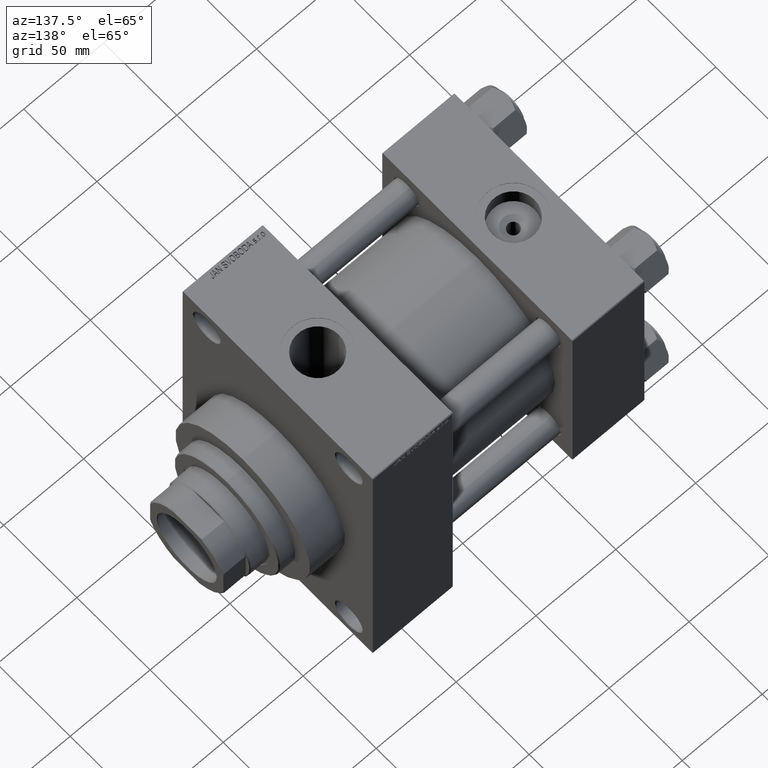
[diagram: clean part render]
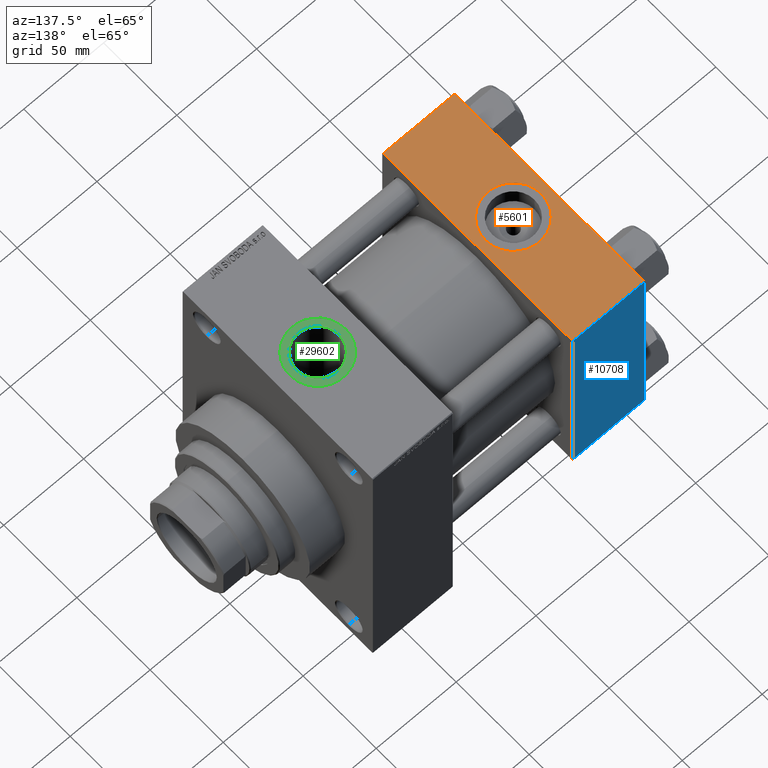
[diagram: same view with three faces highlighted in distinct colors, each labeled with its STEP entity id]
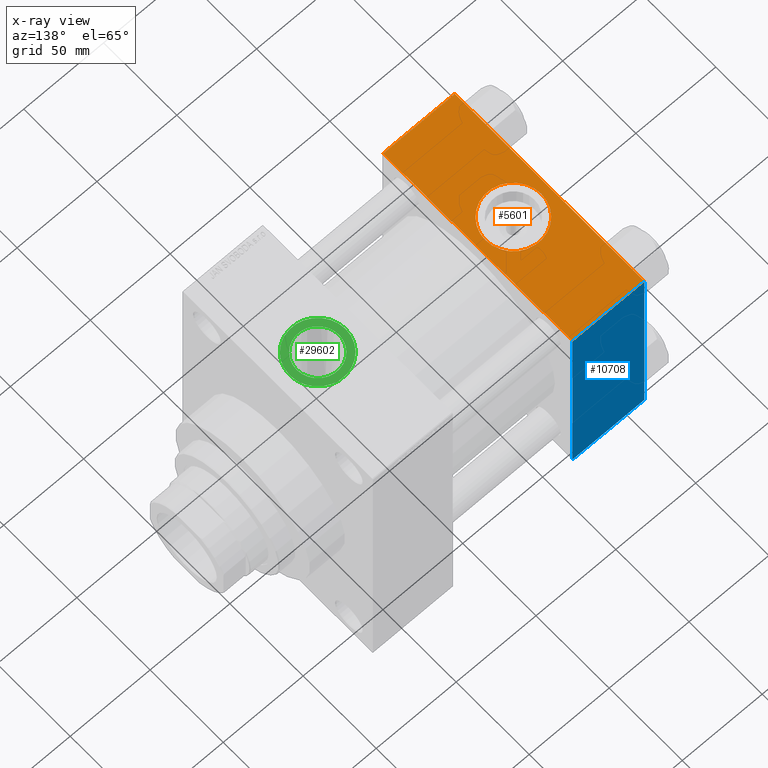
[diagram: x-ray of the same camera — body ghosted, the three highlighted faces saturated]
A machine part, auxiliary view with three faces highlighted in distinct colors.
The next image is the same camera in x-ray (body ghosted, the three faces saturated) — at least one of them is partly hidden behind the body in this view.
Their STEP definitions:

[orange] entity #5601 — the highlighted planar face has unit normal (0, 0, -1).
#401 = EDGE_CURVE ( 'NONE', #7485, #40539, #41280, .T. ) ;
#544 = LINE ( 'NONE', #14367, #30205 ) ;
#2630 = DIRECTION ( 'NONE',  ( 0.000000000000000000, 0.000000000000000000, 1.000000000000000000 ) ) ;
#2681 = ORIENTED_EDGE ( 'NONE', *, *, #42857, .T. ) ;
#3645 = ORIENTED_EDGE ( 'NONE', *, *, #401, .F. ) ;
#4182 = DIRECTION ( 'NONE',  ( -1.000000000000000000, 0.000000000000000000, 0.000000000000000000 ) ) ;
#4373 = DIRECTION ( 'NONE',  ( 0.000000000000000000, -1.000000000000000000, -1.067522139062650425E-16 ) ) ;
#4875 = ORIENTED_EDGE ( 'NONE', *, *, #27930, .T. ) ;
#5601 = ADVANCED_FACE ( 'NONE', ( #45344, #12793 ), #12308, .F. ) ;
#6033 = DIRECTION ( 'NONE',  ( 1.000000000000000000, 0.000000000000000000, 0.000000000000000000 ) ) ;
#6834 = CIRCLE ( 'NONE', #23810, 17.50000000000000000 ) ;
#7151 = DIRECTION ( 'NONE',  ( 0.000000000000000000, -1.000000000000000000, -1.067522139062650425E-16 ) ) ;
#7350 = CARTESIAN_POINT ( 'NONE',  ( 45.00000000000000000, 64.49999999999997158, 65.00000000000001421 ) ) ;
#7485 = VERTEX_POINT ( 'NONE', #7350 ) ;
#10132 = CARTESIAN_POINT ( 'NONE',  ( 45.00000000000000000, -64.49999999999997158, 65.00000000000000000 ) ) ;
#10626 = LINE ( 'NONE', #10132, #37083 ) ;
#11154 = CARTESIAN_POINT ( 'NONE',  ( 40.00000000000000000, -8.673617379884035472E-15, 65.00000000000000000 ) ) ;
#12308 = PLANE ( 'NONE',  #18219 ) ;
#12793 = FACE_OUTER_BOUND ( 'NONE', #16315, .T. ) ;
#13762 = CARTESIAN_POINT ( 'NONE',  ( 22.50000000000000000, -8.673617379884035472E-15, 65.00000000000000000 ) ) ;
#14367 = CARTESIAN_POINT ( 'NONE',  ( 0.000000000000000000, 64.49999999999997158, 65.00000000000001421 ) ) ;
#14674 = DIRECTION ( 'NONE',  ( 0.000000000000000000, 0.000000000000000000, 1.000000000000000000 ) ) ;
#14714 = DIRECTION ( 'NONE',  ( 1.000000000000000000, 0.000000000000000000, 0.000000000000000000 ) ) ;
#16134 = ORIENTED_EDGE ( 'NONE', *, *, #28343, .F. ) ;
#16315 = EDGE_LOOP ( 'NONE', ( #2681, #37251, #3645, #4875 ) ) ;
#18219 = AXIS2_PLACEMENT_3D ( 'NONE', #31595, #34497, #19530 ) ;
#19223 = VERTEX_POINT ( 'NONE', #24074 ) ;
#19530 = DIRECTION ( 'NONE',  ( 0.000000000000000000, 1.000000000000000000, 1.067522139062650548E-16 ) ) ;
#19830 = EDGE_CURVE ( 'NONE', #22327, #38251, #6834, .T. ) ;
#21905 = VERTEX_POINT ( 'NONE', #47520 ) ;
#22327 = VERTEX_POINT ( 'NONE', #37088 ) ;
#23810 = AXIS2_PLACEMENT_3D ( 'NONE', #13762, #2630, #6033 ) ;
#24074 = CARTESIAN_POINT ( 'NONE',  ( 0.000000000000000000, 64.49999999999997158, 65.00000000000001421 ) ) ;
#27102 = AXIS2_PLACEMENT_3D ( 'NONE', #36855, #14674, #29394 ) ;
#27930 = EDGE_CURVE ( 'NONE', #7485, #19223, #544, .T. ) ;
#28343 = EDGE_CURVE ( 'NONE', #38251, #22327, #40220, .T. ) ;
#29124 = LINE ( 'NONE', #40190, #32682 ) ;
#29394 = DIRECTION ( 'NONE',  ( 1.000000000000000000, 0.000000000000000000, 0.000000000000000000 ) ) ;
#30205 = VECTOR ( 'NONE', #4182, 1000.000000000000000 ) ;
#30889 = EDGE_CURVE ( 'NONE', #21905, #40539, #10626, .T. ) ;
#31595 = CARTESIAN_POINT ( 'NONE',  ( 45.00000000000000000, 65.00000000000000000, 65.00000000000001421 ) ) ;
#32682 = VECTOR ( 'NONE', #7151, 1000.000000000000000 ) ;
#33336 = ORIENTED_EDGE ( 'NONE', *, *, #19830, .F. ) ;
#34497 = DIRECTION ( 'NONE',  ( 0.000000000000000000, 1.067522139062650548E-16, -1.000000000000000000 ) ) ;
#36855 = CARTESIAN_POINT ( 'NONE',  ( 22.50000000000000000, -8.673617379884035472E-15, 65.00000000000000000 ) ) ;
#36991 = CARTESIAN_POINT ( 'NONE',  ( 45.00000000000000000, -64.49999999999997158, 65.00000000000000000 ) ) ;
#37083 = VECTOR ( 'NONE', #14714, 1000.000000000000000 ) ;
#37088 = CARTESIAN_POINT ( 'NONE',  ( 4.999999999999997335, -6.530485481376167224E-15, 65.00000000000000000 ) ) ;
#37251 = ORIENTED_EDGE ( 'NONE', *, *, #30889, .T. ) ;
#38251 = VERTEX_POINT ( 'NONE', #11154 ) ;
#40190 = CARTESIAN_POINT ( 'NONE',  ( 0.000000000000000000, 65.00000000000000000, 65.00000000000001421 ) ) ;
#40220 = CIRCLE ( 'NONE', #27102, 17.50000000000000000 ) ;
#40539 = VERTEX_POINT ( 'NONE', #36991 ) ;
#41107 = VECTOR ( 'NONE', #4373, 1000.000000000000000 ) ;
#41280 = LINE ( 'NONE', #41751, #41107 ) ;
#41751 = CARTESIAN_POINT ( 'NONE',  ( 45.00000000000000000, 65.00000000000000000, 65.00000000000001421 ) ) ;
#41849 = EDGE_LOOP ( 'NONE', ( #16134, #33336 ) ) ;
#42857 = EDGE_CURVE ( 'NONE', #19223, #21905, #29124, .T. ) ;
#45344 = FACE_BOUND ( 'NONE', #41849, .T. ) ;
#47520 = CARTESIAN_POINT ( 'NONE',  ( 0.000000000000000000, -64.49999999999997158, 65.00000000000000000 ) ) ;

[blue] entity #10708 — the highlighted planar face has unit normal (0, 1, 0).
#1349 = CARTESIAN_POINT ( 'NONE',  ( 45.00000000000000000, 65.00000000000000000, -64.49999999999995737 ) ) ;
#1442 = VERTEX_POINT ( 'NONE', #10655 ) ;
#3734 = DIRECTION ( 'NONE',  ( -1.000000000000000000, 0.000000000000000000, 0.000000000000000000 ) ) ;
#3793 = VECTOR ( 'NONE', #31983, 1000.000000000000000 ) ;
#7605 = FACE_OUTER_BOUND ( 'NONE', #9849, .T. ) ;
#7895 = ORIENTED_EDGE ( 'NONE', *, *, #21408, .F. ) ;
#9849 = EDGE_LOOP ( 'NONE', ( #21918, #35313, #7895, #21667 ) ) ;
#10655 = CARTESIAN_POINT ( 'NONE',  ( 0.000000000000000000, 65.00000000000000000, 64.49999999999998579 ) ) ;
#10708 = ADVANCED_FACE ( 'NONE', ( #7605 ), #29087, .T. ) ;
#11218 = CARTESIAN_POINT ( 'NONE',  ( 45.00000000000000000, 65.00000000000000000, 65.00000000000001421 ) ) ;
#13652 = CARTESIAN_POINT ( 'NONE',  ( 0.000000000000000000, 65.00000000000000000, 65.00000000000001421 ) ) ;
#14694 = DIRECTION ( 'NONE',  ( 0.000000000000000000, 0.000000000000000000, -1.000000000000000000 ) ) ;
#14921 = VECTOR ( 'NONE', #3734, 1000.000000000000000 ) ;
#17981 = DIRECTION ( 'NONE',  ( -0.000000000000000000, 1.000000000000000000, 0.000000000000000000 ) ) ;
#20542 = AXIS2_PLACEMENT_3D ( 'NONE', #11218, #17981, #25942 ) ;
#21408 = EDGE_CURVE ( 'NONE', #1442, #31029, #31280, .T. ) ;
#21667 = ORIENTED_EDGE ( 'NONE', *, *, #47596, .T. ) ;
#21918 = ORIENTED_EDGE ( 'NONE', *, *, #23157, .T. ) ;
#22089 = LINE ( 'NONE', #36795, #14921 ) ;
#23157 = EDGE_CURVE ( 'NONE', #43048, #34508, #36399, .T. ) ;
#25942 = DIRECTION ( 'NONE',  ( 0.000000000000000000, -0.000000000000000000, 1.000000000000000000 ) ) ;
#29087 = PLANE ( 'NONE',  #20542 ) ;
#31004 = CARTESIAN_POINT ( 'NONE',  ( 45.00000000000000000, 65.00000000000000000, 64.49999999999998579 ) ) ;
#31029 = VERTEX_POINT ( 'NONE', #46016 ) ;
#31171 = VECTOR ( 'NONE', #37561, 1000.000000000000000 ) ;
#31280 = LINE ( 'NONE', #13652, #3793 ) ;
#31983 = DIRECTION ( 'NONE',  ( 0.000000000000000000, 0.000000000000000000, -1.000000000000000000 ) ) ;
#34508 = VERTEX_POINT ( 'NONE', #1349 ) ;
#35313 = ORIENTED_EDGE ( 'NONE', *, *, #36138, .T. ) ;
#36138 = EDGE_CURVE ( 'NONE', #34508, #31029, #22089, .T. ) ;
#36399 = LINE ( 'NONE', #36874, #45406 ) ;
#36795 = CARTESIAN_POINT ( 'NONE',  ( 45.00000000000000000, 65.00000000000000000, -64.49999999999995737 ) ) ;
#36874 = CARTESIAN_POINT ( 'NONE',  ( 45.00000000000000000, 65.00000000000000000, 65.00000000000001421 ) ) ;
#37561 = DIRECTION ( 'NONE',  ( 1.000000000000000000, 0.000000000000000000, 0.000000000000000000 ) ) ;
#40937 = LINE ( 'NONE', #41410, #31171 ) ;
#41410 = CARTESIAN_POINT ( 'NONE',  ( 45.00000000000000000, 65.00000000000000000, 64.49999999999998579 ) ) ;
#43048 = VERTEX_POINT ( 'NONE', #31004 ) ;
#45406 = VECTOR ( 'NONE', #14694, 1000.000000000000000 ) ;
#46016 = CARTESIAN_POINT ( 'NONE',  ( 0.000000000000000000, 65.00000000000000000, -64.49999999999995737 ) ) ;
#47596 = EDGE_CURVE ( 'NONE', #1442, #43048, #40937, .T. ) ;

[green] entity #29602 — the highlighted planar face has unit normal (0, 0, 1).
#904 = VERTEX_POINT ( 'NONE', #19874 ) ;
#2038 = CARTESIAN_POINT ( 'NONE',  ( 144.9999999999999716, 0.000000000000000000, 94.79999999999996874 ) ) ;
#3128 = CIRCLE ( 'NONE', #39318, 13.22000000000000952 ) ;
#3169 = FACE_OUTER_BOUND ( 'NONE', #35324, .T. ) ;
#4809 = VERTEX_POINT ( 'NONE', #38341 ) ;
#4863 = DIRECTION ( 'NONE',  ( -0.000000000000000000, -0.000000000000000000, -1.000000000000000000 ) ) ;
#5349 = CARTESIAN_POINT ( 'NONE',  ( 144.9999999999999716, 0.000000000000000000, 94.79999999999996874 ) ) ;
#7286 = PLANE ( 'NONE',  #36299 ) ;
#7507 = CIRCLE ( 'NONE', #35311, 17.50000000000001421 ) ;
#7796 = VERTEX_POINT ( 'NONE', #43446 ) ;
#8081 = EDGE_LOOP ( 'NONE', ( #31412, #45527 ) ) ;
#9090 = DIRECTION ( 'NONE',  ( 0.000000000000000000, 0.000000000000000000, 1.000000000000000000 ) ) ;
#9861 = CARTESIAN_POINT ( 'NONE',  ( 144.9999999999999716, 0.000000000000000000, 94.79999999999996874 ) ) ;
#10340 = DIRECTION ( 'NONE',  ( 0.000000000000000000, 0.000000000000000000, 1.000000000000000000 ) ) ;
#13393 = DIRECTION ( 'NONE',  ( 1.000000000000000000, 0.000000000000000000, 0.000000000000000000 ) ) ;
#15632 = EDGE_CURVE ( 'NONE', #7796, #904, #7507, .T. ) ;
#15990 = DIRECTION ( 'NONE',  ( 1.000000000000000000, 0.000000000000000000, 0.000000000000000000 ) ) ;
#19874 = CARTESIAN_POINT ( 'NONE',  ( 127.4999999999999432, 2.143131898507871404E-15, 94.79999999999996874 ) ) ;
#24647 = EDGE_CURVE ( 'NONE', #4809, #32892, #3128, .T. ) ;
#25396 = DIRECTION ( 'NONE',  ( 1.000000000000000000, 0.000000000000000000, -0.000000000000000000 ) ) ;
#28174 = CIRCLE ( 'NONE', #29702, 13.22000000000000952 ) ;
#29602 = ADVANCED_FACE ( 'NONE', ( #47087, #3169 ), #7286, .T. ) ;
#29702 = AXIS2_PLACEMENT_3D ( 'NONE', #5349, #4863, #15990 ) ;
#30317 = DIRECTION ( 'NONE',  ( 1.000000000000000000, 0.000000000000000000, 0.000000000000000000 ) ) ;
#31412 = ORIENTED_EDGE ( 'NONE', *, *, #24647, .T. ) ;
#32109 = CARTESIAN_POINT ( 'NONE',  ( 158.2199999999999704, 1.618983068472802926E-15, 94.79999999999996874 ) ) ;
#32129 = ORIENTED_EDGE ( 'NONE', *, *, #15632, .T. ) ;
#32892 = VERTEX_POINT ( 'NONE', #32109 ) ;
#33153 = EDGE_CURVE ( 'NONE', #904, #7796, #41752, .T. ) ;
#33307 = AXIS2_PLACEMENT_3D ( 'NONE', #9861, #10340, #46758 ) ;
#35311 = AXIS2_PLACEMENT_3D ( 'NONE', #42351, #9090, #30317 ) ;
#35324 = EDGE_LOOP ( 'NONE', ( #32129, #35842 ) ) ;
#35842 = ORIENTED_EDGE ( 'NONE', *, *, #33153, .T. ) ;
#36299 = AXIS2_PLACEMENT_3D ( 'NONE', #36469, #43453, #25396 ) ;
#36469 = CARTESIAN_POINT ( 'NONE',  ( 144.9999999999999716, 0.000000000000000000, 94.79999999999996874 ) ) ;
#38341 = CARTESIAN_POINT ( 'NONE',  ( 131.7799999999999443, 0.000000000000000000, 94.79999999999996874 ) ) ;
#39318 = AXIS2_PLACEMENT_3D ( 'NONE', #2038, #46432, #13393 ) ;
#39705 = EDGE_CURVE ( 'NONE', #32892, #4809, #28174, .T. ) ;
#41752 = CIRCLE ( 'NONE', #33307, 17.50000000000001421 ) ;
#42351 = CARTESIAN_POINT ( 'NONE',  ( 144.9999999999999716, 0.000000000000000000, 94.79999999999996874 ) ) ;
#43446 = CARTESIAN_POINT ( 'NONE',  ( 162.4999999999999716, 0.000000000000000000, 94.79999999999996874 ) ) ;
#43453 = DIRECTION ( 'NONE',  ( 0.000000000000000000, 0.000000000000000000, 1.000000000000000000 ) ) ;
#45527 = ORIENTED_EDGE ( 'NONE', *, *, #39705, .T. ) ;
#46432 = DIRECTION ( 'NONE',  ( -0.000000000000000000, -0.000000000000000000, -1.000000000000000000 ) ) ;
#46758 = DIRECTION ( 'NONE',  ( 1.000000000000000000, 0.000000000000000000, 0.000000000000000000 ) ) ;
#47087 = FACE_BOUND ( 'NONE', #8081, .T. ) ;